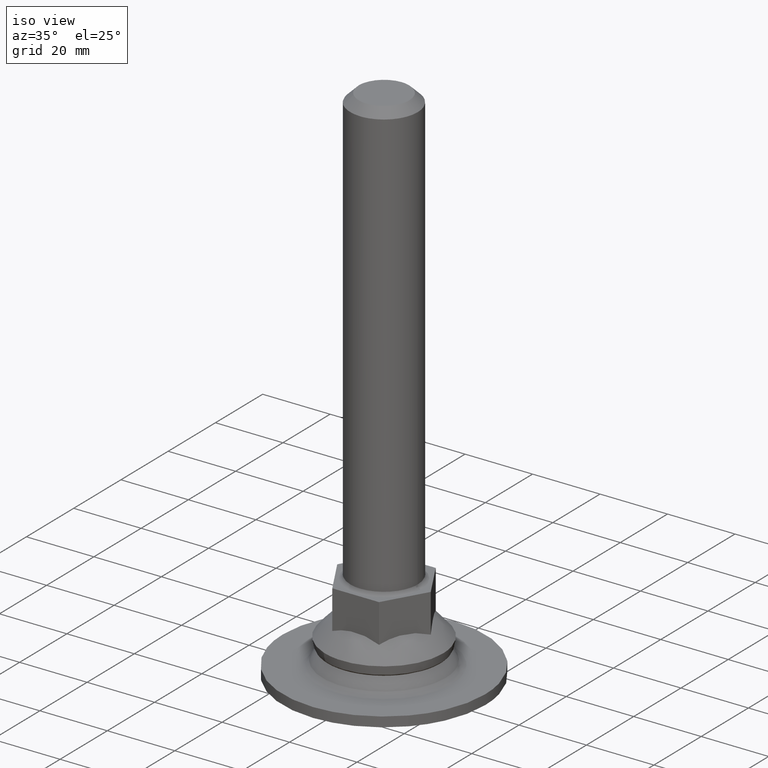
[diagram: clean part render]
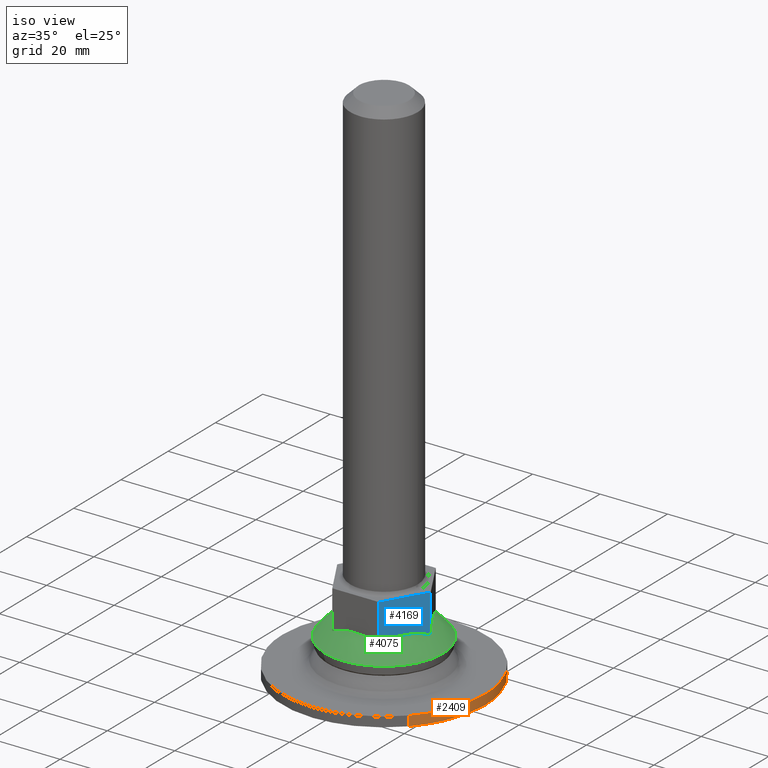
[diagram: same view with three faces highlighted in distinct colors, each labeled with its STEP entity id]
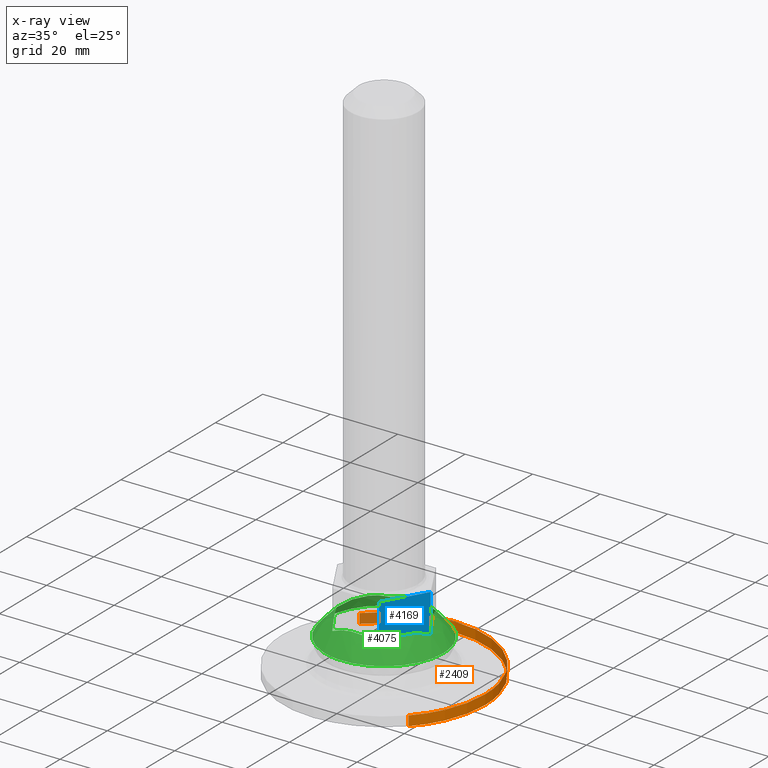
[diagram: x-ray of the same camera — body ghosted, the three highlighted faces saturated]
A machine part, iso view with three faces highlighted in distinct colors.
The next image is the same camera in x-ray (body ghosted, the three faces saturated) — at least one of them is partly hidden behind the body in this view.
Their STEP definitions:

[orange] entity #2409 — the highlighted face is a freeform B-spline surface patch.
#2119=CARTESIAN_POINT('',(21.761230764996089,-20.650637017019928,2.899999999989398));
#2120=VERTEX_POINT('',#2119);
#2132=CARTESIAN_POINT('',(30.0,0.0,2.900000000000000));
#2133=VERTEX_POINT('',#2132);
#2134=CARTESIAN_POINT('',(30.0,0.0,2.900000000000000));
#2135=CARTESIAN_POINT('',(30.000355393222371,-2.076019586757718,2.899999999998936));
#2136=CARTESIAN_POINT('',(29.647568647536708,-5.456774127191904,2.899999999997204));
#2137=CARTESIAN_POINT('',(28.494235643432059,-9.578144171243961,2.899999999995075));
#2138=CARTESIAN_POINT('',(27.208681720518189,-12.772798015401550,2.899999999993449));
#2139=CARTESIAN_POINT('',(25.225470773670221,-16.497149818806999,2.899999999991527));
#2140=CARTESIAN_POINT('',(23.190491004012021,-19.144962882207700,2.899999999990175));
#2141=CARTESIAN_POINT('',(21.761230764996089,-20.650637017019928,2.899999999989398));
#2142=B_SPLINE_CURVE_WITH_KNOTS('',3,(#2134,#2135,#2136,#2137,#2138,#2139,#2140,#2141),.UNSPECIFIED.,.F.,.U.,(4,1,1,1,1,4),(0.000000022252120,6.227972320940832,10.142719562158350,12.811824414762359,16.548607727859821,22.776580026541399),.UNSPECIFIED.);
#2143=EDGE_CURVE('',#2133,#2120,#2142,.T.);
#2145=CARTESIAN_POINT('',(0.000001761338240,29.999999999999940,2.900000000000000));
#2146=VERTEX_POINT('',#2145);
#2147=CARTESIAN_POINT('',(0.000001761338240,29.999999999999940,2.900000000000000));
#2148=CARTESIAN_POINT('',(2.086238682202093,30.000303496341811,2.900000000000003));
#2149=CARTESIAN_POINT('',(5.338133266690688,29.659378009117429,2.899999999999998));
#2150=CARTESIAN_POINT('',(9.488215711440585,28.524436846726669,2.899999999999998));
#2151=CARTESIAN_POINT('',(12.458438911169530,27.347174617853170,2.899999999999993));
#2152=CARTESIAN_POINT('',(15.730336126479569,25.649714122565229,2.900000000000001));
#2153=CARTESIAN_POINT('',(18.958961805379520,23.390681844019440,2.900000000000018));
#2154=CARTESIAN_POINT('',(21.906538539890882,20.601374934706708,2.899999999999998));
#2155=CARTESIAN_POINT('',(24.341667280591540,17.671048854587049,2.899999999999987));
#2156=CARTESIAN_POINT('',(26.226562296412091,14.714615564460701,2.900000000000059));
#2157=CARTESIAN_POINT('',(27.902756596010889,11.226108130881549,2.899999999999996));
#2158=CARTESIAN_POINT('',(29.101911704044880,7.669762040312493,2.900000000000011));
#2159=CARTESIAN_POINT('',(29.845434248517201,3.742892421825609,2.899999999999988));
#2160=CARTESIAN_POINT('',(30.000035239689531,1.227172351174385,2.899999999999964));
#2161=CARTESIAN_POINT('',(30.0,0.0,2.900000000000000));
#2162=B_SPLINE_CURVE_WITH_KNOTS('',3,(#2147,#2148,#2149,#2150,#2151,#2152,#2153,#2154,#2155,#2156,#2157,#2158,#2159,#2160,#2161),.UNSPECIFIED.,.F.,.U.,(4,1,1,1,1,1,1,1,1,1,1,1,4),(0.000000088041674,6.258635742040475,9.756122318117889,12.885464768907941,15.830714375185870,20.800826725328470,24.666443345403270,27.979845836676390,32.213644572505409,35.158893277056379,39.576772422274153,43.442441905843360,47.123962734833711),.UNSPECIFIED.);
#2163=EDGE_CURVE('',#2146,#2133,#2162,.T.);
#2165=CARTESIAN_POINT('',(-21.761230764996188,20.650637017020010,2.899999999989399));
#2166=VERTEX_POINT('',#2165);
#2167=CARTESIAN_POINT('',(-21.761230764996188,20.650637017020010,2.899999999989399));
#2168=CARTESIAN_POINT('',(-20.452053293994322,22.030584865894379,2.899999999990035));
#2169=CARTESIAN_POINT('',(-18.050195995307998,24.121643395084739,2.899999999991213));
#2170=CARTESIAN_POINT('',(-14.115744232367449,26.577198886518669,2.899999999993116));
#2171=CARTESIAN_POINT('',(-10.113395971732899,28.372512276100689,2.899999999995074));
#2172=CARTESIAN_POINT('',(-5.325922357029522,29.678382266814630,2.899999999997396));
#2173=CARTESIAN_POINT('',(-1.838742314626375,30.000184142766880,2.899999999999120));
#2174=CARTESIAN_POINT('',(0.000001761338240,29.999999999999940,2.900000000000000));
#2175=B_SPLINE_CURVE_WITH_KNOTS('',3,(#2167,#2168,#2169,#2170,#2171,#2172,#2173,#2174),.UNSPECIFIED.,.F.,.U.,(4,1,1,1,1,4),(0.000000025372653,5.706417497627022,9.510716173797627,13.885611749658580,18.831184074469579,24.347385363386611),.UNSPECIFIED.);
#2176=EDGE_CURVE('',#2166,#2146,#2175,.T.);
#2329=CARTESIAN_POINT('',(-21.761231130368621,20.650637270812609,2.972500000000000));
#2330=CARTESIAN_POINT('',(-1.110593859556008,42.411868401181231,2.972500000000001));
#2331=CARTESIAN_POINT('',(20.650637270812609,21.761231130368621,2.972500000000000));
#2332=CARTESIAN_POINT('',(42.411868401181231,1.110593859556008,2.972500000000001));
#2333=CARTESIAN_POINT('',(21.761231130368621,-20.650637270812609,2.972500000000000));
#2334=CARTESIAN_POINT('',(-21.761231130368621,20.650637270812609,-0.074312500000000));
#2335=CARTESIAN_POINT('',(-1.110593859556008,42.411868401181231,-0.074312500000000));
#2336=CARTESIAN_POINT('',(20.650637270812609,21.761231130368621,-0.074312500000000));
#2337=CARTESIAN_POINT('',(42.411868401181231,1.110593859556008,-0.074312500000000));
#2338=CARTESIAN_POINT('',(21.761231130368621,-20.650637270812609,-0.074312500000000));
#2346=(BOUNDED_SURFACE()B_SPLINE_SURFACE(2,1,((#2329,#2334),(#2330,#2335),(#2331,#2336),(#2332,#2337),(#2333,#2338)),.UNSPECIFIED.,.F.,.F.,.U.)B_SPLINE_SURFACE_WITH_KNOTS((3,2,3),(2,2),(0.0,49.705627484771391,99.411254969542782),(0.0,3.046812500000001),.UNSPECIFIED.)GEOMETRIC_REPRESENTATION_ITEM()RATIONAL_B_SPLINE_SURFACE(((1.0,1.0),(0.707106781186548,0.707106781186548),(1.0,1.0),(0.707106781186548,0.707106781186548),(1.0,1.0)))REPRESENTATION_ITEM('')SURFACE());
#2347=ORIENTED_EDGE('',*,*,#2176,.T.);
#2348=ORIENTED_EDGE('',*,*,#2163,.T.);
#2349=ORIENTED_EDGE('',*,*,#2143,.T.);
#2350=CARTESIAN_POINT('',(21.761230765545118,-20.650637016441380,-1.387779E-016));
#2351=VERTEX_POINT('',#2350);
#2352=CARTESIAN_POINT('',(21.761230764996089,-20.650637017019928,2.899999999989398));
#2353=CARTESIAN_POINT('',(21.761230765545118,-20.650637016441380,-1.387779E-016));
#2354=QUASI_UNIFORM_CURVE('',1,(#2352,#2353),.UNSPECIFIED.,.F.,.U.);
#2355=EDGE_CURVE('',#2120,#2351,#2354,.T.);
#2356=ORIENTED_EDGE('',*,*,#2355,.T.);
#2357=CARTESIAN_POINT('',(30.0,0.0,0.0));
#2358=VERTEX_POINT('',#2357);
#2359=CARTESIAN_POINT('',(30.0,0.0,0.0));
#2360=CARTESIAN_POINT('',(30.000183377867700,-1.838739617620140,-1.235683E-017));
#2361=CARTESIAN_POINT('',(29.660898921389759,-5.516168831245085,-3.707015E-017));
#2362=CARTESIAN_POINT('',(28.363253247305799,-10.101253346123579,-6.788316E-017));
#2363=CARTESIAN_POINT('',(26.687648335277430,-13.841605054287360,-9.301934E-017));
#2364=CARTESIAN_POINT('',(24.692253565640790,-17.217599870902362,-1.157069E-016));
#2365=CARTESIAN_POINT('',(22.904549774524710,-19.446032984824779,-1.306826E-016));
#2366=CARTESIAN_POINT('',(21.761230765545118,-20.650637016441380,-1.387779E-016));
#2367=B_SPLINE_CURVE_WITH_KNOTS('',3,(#2359,#2360,#2361,#2362,#2363,#2364,#2365,#2366),.UNSPECIFIED.,.F.,.U.,(4,1,1,1,1,4),(0.000000022256284,5.516202165976527,11.032428558268119,14.235361105252730,17.794207202618342,22.776580025743879),.UNSPECIFIED.);
#2368=EDGE_CURVE('',#2358,#2351,#2367,.T.);
#2369=ORIENTED_EDGE('',*,*,#2368,.F.);
#2370=CARTESIAN_POINT('',(0.000001761338240,29.999999999999940,0.0));
#2371=VERTEX_POINT('',#2370);
#2372=CARTESIAN_POINT('',(0.000001761338240,29.999999999999940,0.0));
#2373=CARTESIAN_POINT('',(2.086229581603931,30.000278536362849,0.0));
#2374=CARTESIAN_POINT('',(6.135829194591464,29.575907864060088,0.0));
#2375=CARTESIAN_POINT('',(11.190604742922870,27.974587807741141,0.0));
#2376=CARTESIAN_POINT('',(15.528528393269760,25.790869995812269,0.0));
#2377=CARTESIAN_POINT('',(18.958963661492280,23.390681587139579,0.0));
#2378=CARTESIAN_POINT('',(21.906538204748330,20.601374966317231,0.0));
#2379=CARTESIAN_POINT('',(24.341667302574329,17.671048877060208,0.0));
#2380=CARTESIAN_POINT('',(26.226562289995680,14.714615557634691,0.0));
#2381=CARTESIAN_POINT('',(27.902756598369070,11.226108133390120,0.0));
#2382=CARTESIAN_POINT('',(29.101911703390510,7.669762039616171,0.0));
#2383=CARTESIAN_POINT('',(29.845434248600430,3.742892421914155,0.0));
#2384=CARTESIAN_POINT('',(30.000035239689542,1.227172351174387,0.0));
#2385=CARTESIAN_POINT('',(30.0,0.0,0.0));
#2386=B_SPLINE_CURVE_WITH_KNOTS('',3,(#2372,#2373,#2374,#2375,#2376,#2377,#2378,#2379,#2380,#2381,#2382,#2383,#2384,#2385),.UNSPECIFIED.,.F.,.U.,(4,1,1,1,1,1,1,1,1,1,1,4),(0.000000088041674,6.258635742040475,12.149147541237570,15.830714375185870,20.800826725328470,24.666443345403270,27.979845836676390,32.213644572505409,35.158893277056379,39.576772422274153,43.442441905843360,47.123962734833711),.UNSPECIFIED.);
#2387=EDGE_CURVE('',#2371,#2358,#2386,.T.);
#2388=ORIENTED_EDGE('',*,*,#2387,.F.);
#2389=CARTESIAN_POINT('',(-21.761230765545200,20.650637016441468,-1.387779E-016));
#2390=VERTEX_POINT('',#2389);
#2391=CARTESIAN_POINT('',(-21.761230765545200,20.650637016441468,-1.387779E-016));
#2392=CARTESIAN_POINT('',(-20.146695814922090,22.352717505585719,-1.284815E-016));
#2393=CARTESIAN_POINT('',(-17.300580464178140,24.721266517780471,-1.103310E-016));
#2394=CARTESIAN_POINT('',(-13.252856310191770,26.987236197412368,-8.451743E-017));
#2395=CARTESIAN_POINT('',(-9.446696908266837,28.579970737940929,-6.024442E-017));
#2396=CARTESIAN_POINT('',(-5.135775263343249,29.711985133281040,-3.275238E-017));
#2397=CARTESIAN_POINT('',(-1.648511353710938,30.000079244026100,-1.051306E-017));
#2398=CARTESIAN_POINT('',(0.000001761338240,29.999999999999940,0.0));
#2399=B_SPLINE_CURVE_WITH_KNOTS('',3,(#2391,#2392,#2393,#2394,#2395,#2396,#2397,#2398),.UNSPECIFIED.,.F.,.U.,(4,1,1,1,1,4),(0.000000025370674,7.037918678431822,11.032414331042760,13.885611750113910,19.401829110458159,24.347385364184198),.UNSPECIFIED.);
#2400=EDGE_CURVE('',#2390,#2371,#2399,.T.);
#2401=ORIENTED_EDGE('',*,*,#2400,.F.);
#2402=CARTESIAN_POINT('',(-21.761230764996188,20.650637017020010,2.899999999989399));
#2403=CARTESIAN_POINT('',(-21.761230765545200,20.650637016441468,-1.387779E-016));
#2404=QUASI_UNIFORM_CURVE('',1,(#2402,#2403),.UNSPECIFIED.,.F.,.U.);
#2405=EDGE_CURVE('',#2166,#2390,#2404,.T.);
#2406=ORIENTED_EDGE('',*,*,#2405,.F.);
#2407=EDGE_LOOP('',(#2347,#2348,#2349,#2356,#2369,#2388,#2401,#2406));
#2408=FACE_OUTER_BOUND('',#2407,.T.);
#2409=ADVANCED_FACE('',(#2408),#2346,.T.);

[blue] entity #4169 — the highlighted face is a freeform B-spline surface patch.
#4013=CARTESIAN_POINT('',(13.856406460551060,-8.673617E-016,14.570158679988101));
#4014=VERTEX_POINT('',#4013);
#4026=CARTESIAN_POINT('',(6.928203230275470,-12.0,14.570158679988181));
#4027=VERTEX_POINT('',#4026);
#4028=CARTESIAN_POINT('',(13.856406460551060,-8.673617E-016,14.570158679988101));
#4029=CARTESIAN_POINT('',(13.141034553828201,-1.239060488751392,15.187634220445579));
#4030=CARTESIAN_POINT('',(12.023676380910620,-3.174381614496955,15.813457879783851));
#4031=CARTESIAN_POINT('',(10.300026580062340,-6.159830644022265,16.077137179080481));
#4032=CARTESIAN_POINT('',(8.702854577197627,-8.926213701409857,15.802166407660289));
#4033=CARTESIAN_POINT('',(7.524375763918598,-10.967398881653240,15.084465036111521));
#4034=CARTESIAN_POINT('',(6.928203230275470,-12.0,14.570158679988181));
#4035=B_SPLINE_CURVE_WITH_KNOTS('',3,(#4028,#4029,#4030,#4031,#4032,#4033,#4034),.UNSPECIFIED.,.F.,.U.,(4,1,1,1,4),(0.000000028514807,4.674672836013926,6.900697735109973,10.351039210532790,14.246592451144121),.UNSPECIFIED.);
#4036=EDGE_CURVE('',#4014,#4027,#4035,.T.);
#4104=CARTESIAN_POINT('',(6.928203230275470,-12.0,26.0));
#4105=VERTEX_POINT('',#4104);
#4111=CARTESIAN_POINT('',(13.856406460551060,0.0,26.0));
#4112=VERTEX_POINT('',#4111);
#4113=CARTESIAN_POINT('',(6.928203230275470,-12.0,26.0));
#4114=CARTESIAN_POINT('',(13.856406460551060,0.0,26.0));
#4115=QUASI_UNIFORM_CURVE('',1,(#4113,#4114),.UNSPECIFIED.,.F.,.U.);
#4116=EDGE_CURVE('',#4105,#4112,#4115,.T.);
#4146=CARTESIAN_POINT('',(13.856406460551060,0.0,26.0));
#4147=CARTESIAN_POINT('',(13.856406460551060,-8.673617E-016,14.570158679988101));
#4148=QUASI_UNIFORM_CURVE('',1,(#4146,#4147),.UNSPECIFIED.,.F.,.U.);
#4149=EDGE_CURVE('',#4112,#4014,#4148,.T.);
#4154=CARTESIAN_POINT('',(14.202470198475149,0.599399976741658,13.999238128206761));
#4155=CARTESIAN_POINT('',(6.582139306522511,-12.599400298606760,13.999238128206761));
#4156=CARTESIAN_POINT('',(14.202470198475149,0.599399976741658,26.570920858353581));
#4157=CARTESIAN_POINT('',(6.582139306522511,-12.599400298606760,26.570920858353581));
#4158=B_SPLINE_SURFACE_WITH_KNOTS('',1,1,((#4154,#4156),(#4155,#4157)),.UNSPECIFIED.,.F.,.F.,.U.,(2,2),(2,2),(0.0,15.240661783905090),(0.0,12.571682730146820),.UNSPECIFIED.);
#4159=ORIENTED_EDGE('',*,*,#4036,.F.);
#4160=ORIENTED_EDGE('',*,*,#4149,.F.);
#4161=ORIENTED_EDGE('',*,*,#4116,.F.);
#4162=CARTESIAN_POINT('',(6.928203230275470,-12.0,26.0));
#4163=CARTESIAN_POINT('',(6.928203230275470,-12.0,14.570158679988181));
#4164=QUASI_UNIFORM_CURVE('',1,(#4162,#4163),.UNSPECIFIED.,.F.,.U.);
#4165=EDGE_CURVE('',#4105,#4027,#4164,.T.);
#4166=ORIENTED_EDGE('',*,*,#4165,.T.);
#4167=EDGE_LOOP('',(#4159,#4160,#4161,#4166));
#4168=FACE_OUTER_BOUND('',#4167,.T.);
#4169=ADVANCED_FACE('',(#4168),#4158,.F.);

[green] entity #4075 — the highlighted face is a freeform B-spline surface patch.
#3670=CARTESIAN_POINT('',(6.442179674585724,16.271088502013519,10.499999999990189));
#3671=VERTEX_POINT('',#3670);
#3679=CARTESIAN_POINT('',(17.500000000000000,0.0,10.500000000000000));
#3680=VERTEX_POINT('',#3679);
#3681=CARTESIAN_POINT('',(6.442179674585724,16.271088502013519,10.499999999990189));
#3682=CARTESIAN_POINT('',(7.453908197713509,15.870616209934409,10.499999999990621));
#3683=CARTESIAN_POINT('',(9.402295731364310,14.880143170148971,10.499999999991610));
#3684=CARTESIAN_POINT('',(11.782378638544200,13.045172664836080,10.499999999993010));
#3685=CARTESIAN_POINT('',(13.903208086971810,10.772229792109140,10.499999999994550));
#3686=CARTESIAN_POINT('',(15.457672082496000,8.390702196822153,10.499999999995950));
#3687=CARTESIAN_POINT('',(16.469123751887949,6.035357947709137,10.499999999997240));
#3688=CARTESIAN_POINT('',(17.261199583277381,3.372986185648013,10.499999999998529));
#3689=CARTESIAN_POINT('',(17.500372527639481,1.414579519061805,10.499999999999520));
#3690=CARTESIAN_POINT('',(17.500000000000000,0.0,10.500000000000000));
#3691=B_SPLINE_CURVE_WITH_KNOTS('',3,(#3681,#3682,#3683,#3684,#3685,#3686,#3687,#3688,#3689,#3690),.UNSPECIFIED.,.F.,.U.,(4,1,1,1,1,1,1,4),(0.000000062979431,3.264314840136564,6.528658448038792,8.976888634909805,12.567640619368021,15.015879468751271,16.648049369415961,20.891666860553300),.UNSPECIFIED.);
#3692=EDGE_CURVE('',#3671,#3680,#3691,.T.);
#3694=CARTESIAN_POINT('',(-6.442179674585729,-16.271088502013519,10.499999999990189));
#3695=VERTEX_POINT('',#3694);
#3696=CARTESIAN_POINT('',(17.500000000000000,0.0,10.500000000000000));
#3697=CARTESIAN_POINT('',(17.500006211144171,-0.710124742741039,10.499999999999870));
#3698=CARTESIAN_POINT('',(17.394568277416280,-2.441073384372994,10.499999999999501));
#3699=CARTESIAN_POINT('',(16.848613413544960,-5.012392549660858,10.499999999998851));
#3700=CARTESIAN_POINT('',(15.940593902250860,-7.333797674413325,10.499999999998231));
#3701=CARTESIAN_POINT('',(14.793594773524291,-9.441569019860035,10.499999999997460));
#3702=CARTESIAN_POINT('',(13.250885818245290,-11.567879454937380,10.499999999996589));
#3703=CARTESIAN_POINT('',(11.358936673292749,-13.395390039172559,10.499999999995580));
#3704=CARTESIAN_POINT('',(9.194385898848569,-14.952184427519200,10.499999999995140));
#3705=CARTESIAN_POINT('',(6.797775305136968,-16.231853776583151,10.499999999993360));
#3706=CARTESIAN_POINT('',(3.992440345801060,-17.123544853423098,10.499999999993641));
#3707=CARTESIAN_POINT('',(0.864867560558503,-17.565572910576019,10.499999999991660));
#3708=CARTESIAN_POINT('',(-2.569056542280547,-17.459748864937740,10.499999999991211));
#3709=CARTESIAN_POINT('',(-5.121768541767907,-16.794283924800791,10.499999999990569));
#3710=CARTESIAN_POINT('',(-6.442179674585729,-16.271088502013519,10.499999999990189));
#3711=B_SPLINE_CURVE_WITH_KNOTS('',3,(#3696,#3697,#3698,#3699,#3700,#3701,#3702,#3703,#3704,#3705,#3706,#3707,#3708,#3709,#3710),.UNSPECIFIED.,.F.,.U.,(4,1,1,1,1,1,1,1,1,1,1,1,4),(0.000000168006792,2.130385487318371,5.192829445265314,7.855836131159776,9.586800588234187,12.382971418553350,15.711746756407191,17.442615929352371,20.371914432671598,23.833821584871259,26.230523017547949,29.825601393637569,34.086362511395507),.UNSPECIFIED.);
#3712=EDGE_CURVE('',#3680,#3695,#3711,.T.);
#3758=CARTESIAN_POINT('',(-17.500000000000121,0.0,10.500000000000000));
#3759=VERTEX_POINT('',#3758);
#3760=CARTESIAN_POINT('',(-6.442179674585729,-16.271088502013519,10.499999999990189));
#3761=CARTESIAN_POINT('',(-7.909403056505498,-15.690785012143140,10.499999999990870));
#3762=CARTESIAN_POINT('',(-10.253886765626660,-14.371399130210991,10.499999999991999));
#3763=CARTESIAN_POINT('',(-12.995933290166050,-11.863900337865269,10.499999999993859));
#3764=CARTESIAN_POINT('',(-14.809583255925981,-9.469138042600354,10.499999999995341));
#3765=CARTESIAN_POINT('',(-16.310329054576361,-6.621495620242734,10.499999999996980));
#3766=CARTESIAN_POINT('',(-17.276221942762579,-3.481962213637714,10.499999999998490));
#3767=CARTESIAN_POINT('',(-17.500058626029968,-1.088089764498307,10.499999999999609));
#3768=CARTESIAN_POINT('',(-17.500000000000121,0.0,10.500000000000000));
#3769=B_SPLINE_CURVE_WITH_KNOTS('',3,(#3760,#3761,#3762,#3763,#3764,#3765,#3766,#3767,#3768),.UNSPECIFIED.,.F.,.U.,(4,1,1,1,1,1,4),(0.000000062977339,4.733268189295398,7.997615517057453,11.098683074711349,13.710139282890230,17.627361045610691,20.891666860553350),.UNSPECIFIED.);
#3770=EDGE_CURVE('',#3695,#3759,#3769,.T.);
#3772=CARTESIAN_POINT('',(-17.500000000000121,0.0,10.500000000000000));
#3773=CARTESIAN_POINT('',(-17.500144850682450,1.153966550089619,10.499999999999741));
#3774=CARTESIAN_POINT('',(-17.314920477574582,3.017994059651594,10.499999999999471));
#3775=CARTESIAN_POINT('',(-16.564199166124059,5.855089227759826,10.499999999998581));
#3776=CARTESIAN_POINT('',(-15.460601955514550,8.388402092233131,10.499999999997890));
#3777=CARTESIAN_POINT('',(-13.958326001599911,10.652154075288170,10.499999999996771));
#3778=CARTESIAN_POINT('',(-12.274874686272330,12.546118164398580,10.499999999996261));
#3779=CARTESIAN_POINT('',(-10.318811712563360,14.230984856603740,10.499999999995341));
#3780=CARTESIAN_POINT('',(-8.112383970420106,15.576022861981160,10.499999999994429));
#3781=CARTESIAN_POINT('',(-5.822178772591757,16.552020377027109,10.499999999993580));
#3782=CARTESIAN_POINT('',(-3.511658972339403,17.209821897142231,10.499999999992800));
#3783=CARTESIAN_POINT('',(-0.641568290883142,17.582201293365120,10.499999999991850));
#3784=CARTESIAN_POINT('',(2.788426120537065,17.411107775737221,10.499999999991079));
#3785=CARTESIAN_POINT('',(5.204268853842240,16.761515460165850,10.499999999990600));
#3786=CARTESIAN_POINT('',(6.442179674585724,16.271088502013519,10.499999999990189));
#3787=B_SPLINE_CURVE_WITH_KNOTS('',3,(#3772,#3773,#3774,#3775,#3776,#3777,#3778,#3779,#3780,#3781,#3782,#3783,#3784,#3785,#3786),.UNSPECIFIED.,.F.,.U.,(4,1,1,1,1,1,1,1,1,1,1,1,4),(0.000000167960621,3.461874291258667,5.592292310645814,8.787892617819455,11.717218310779151,13.714451520045611,16.377485913983229,19.439822022286648,21.437114204128431,23.833821584858072,26.629974421282519,30.091876361677709,34.086362511395542),.UNSPECIFIED.);
#3788=EDGE_CURVE('',#3759,#3671,#3787,.T.);
#3968=CARTESIAN_POINT('',(-14.711999319281363,-14.710809803207098,2.671228951201927));
#3969=CARTESIAN_POINT('',(-9.205027131867572,-18.408565747121305,9.053421584204482));
#3970=CARTESIAN_POINT('',(9.205027131871459,-18.408565747121305,9.053421584201091));
#3971=CARTESIAN_POINT('',(14.711999319282892,-14.710809803207098,2.671228951196516));
#3972=CARTESIAN_POINT('',(-18.409306007857481,-9.203908775871888,9.052130226120786));
#3973=CARTESIAN_POINT('',(-12.295050359183881,-12.294056261808210,19.719095173921449));
#3974=CARTESIAN_POINT('',(12.295050359191690,-12.294056261808210,19.719095173916930));
#3975=CARTESIAN_POINT('',(18.409306007861368,-9.203908775871888,9.052130226114018));
#3976=CARTESIAN_POINT('',(-18.409306007857481,9.203922122853653,9.052130226125998));
#3977=CARTESIAN_POINT('',(-12.295050359183881,12.294074089940970,19.719095173928419));
#3978=CARTESIAN_POINT('',(12.295050359191690,12.294074089940970,19.719095173923890));
#3979=CARTESIAN_POINT('',(18.409306007861368,9.203922122853653,9.052130226119230));
#3980=CARTESIAN_POINT('',(-14.711990749677042,14.710822567064909,2.671214161579952));
#3981=CARTESIAN_POINT('',(-9.205020422254822,18.408579024015843,9.053398424991114));
#3982=CARTESIAN_POINT('',(9.205020422258709,18.408579024015843,9.053398424987721));
#3983=CARTESIAN_POINT('',(14.711990749678579,14.710822567064902,2.671214161574540));
#3991=(BOUNDED_SURFACE()B_SPLINE_SURFACE(2,2,((#3968,#3972,#3976,#3980),(#3969,#3973,#3977,#3981),(#3970,#3974,#3978,#3982),(#3971,#3975,#3979,#3983)),.UNSPECIFIED.,.F.,.F.,.U.)B_SPLINE_SURFACE_WITH_KNOTS((3,1,3),(3,1,3),(0.0,21.055730035494449,42.111460070988898),(0.0,21.054027606828559,42.108085745016723),.UNSPECIFIED.)GEOMETRIC_REPRESENTATION_ITEM()RATIONAL_B_SPLINE_SURFACE(((1.671431610668090,1.335742950216450,1.335742950216450,1.671432584262200),(1.335688660451639,1.0,1.0,1.335689634045749),(1.335688660451639,1.0,1.0,1.335689634045749),(1.671431610668090,1.335742950216450,1.335742950216450,1.671432584262200)))REPRESENTATION_ITEM('')SURFACE());
#3992=ORIENTED_EDGE('',*,*,#3770,.F.);
#3993=ORIENTED_EDGE('',*,*,#3712,.F.);
#3994=ORIENTED_EDGE('',*,*,#3692,.F.);
#3995=ORIENTED_EDGE('',*,*,#3788,.F.);
#3996=EDGE_LOOP('',(#3992,#3993,#3994,#3995));
#3997=FACE_OUTER_BOUND('',#3996,.T.);
#3998=CARTESIAN_POINT('',(-6.928203230275360,12.0,14.570158679988200));
#3999=VERTEX_POINT('',#3998);
#4000=CARTESIAN_POINT('',(6.928203230275470,12.0,14.570158679988140));
#4001=VERTEX_POINT('',#4000);
#4002=CARTESIAN_POINT('',(-6.928203230275360,12.0,14.570158679988200));
#4003=CARTESIAN_POINT('',(-6.178696562258674,12.000000000000041,14.893321924338849));
#4004=CARTESIAN_POINT('',(-4.564160053336132,11.999999999999950,15.459120486944871));
#4005=CARTESIAN_POINT('',(-2.079900639575402,12.000000000000041,15.938964254885279));
#4006=CARTESIAN_POINT('',(0.781018238866467,12.0,16.066536193679720));
#4007=CARTESIAN_POINT('',(3.814555504374301,11.999999999999940,15.688329962001269));
#4008=CARTESIAN_POINT('',(5.940232137980542,12.000000000000041,14.996194962824671));
#4009=CARTESIAN_POINT('',(6.928203230275470,12.0,14.570158679988140));
#4010=B_SPLINE_CURVE_WITH_KNOTS('',3,(#4002,#4003,#4004,#4005,#4006,#4007,#4008,#4009),.UNSPECIFIED.,.F.,.U.,(4,1,1,1,1,4),(0.000000028517164,2.448623432332353,5.119881530781322,7.568494285193552,11.018849480441220,14.246592451143870),.UNSPECIFIED.);
#4011=EDGE_CURVE('',#3999,#4001,#4010,.T.);
#4012=ORIENTED_EDGE('',*,*,#4011,.T.);
#4013=CARTESIAN_POINT('',(13.856406460551060,-8.673617E-016,14.570158679988101));
#4014=VERTEX_POINT('',#4013);
#4015=CARTESIAN_POINT('',(6.928203230275470,12.0,14.570158679988140));
#4016=CARTESIAN_POINT('',(7.524377461426039,10.967395941483961,15.084469845042280));
#4017=CARTESIAN_POINT('',(8.488588868726682,9.297332794801656,15.671598723995890));
#4018=CARTESIAN_POINT('',(9.927026189751881,6.805886271282907,16.030182158436212));
#4019=CARTESIAN_POINT('',(11.117603400616201,4.743746051732094,15.999911357144221));
#4020=CARTESIAN_POINT('',(12.476716101733521,2.389693800184831,15.572881777790551));
#4021=CARTESIAN_POINT('',(13.362421208700169,0.855607554395510,14.996209067962459));
#4022=CARTESIAN_POINT('',(13.856406460551060,-8.673617E-016,14.570158679988101));
#4023=B_SPLINE_CURVE_WITH_KNOTS('',3,(#4015,#4016,#4017,#4018,#4019,#4020,#4021,#4022),.UNSPECIFIED.,.F.,.U.,(4,1,1,1,1,4),(0.000000028514526,3.895553269126078,6.010294554167890,8.681503538857559,11.018849480440680,14.246592451144140),.UNSPECIFIED.);
#4024=EDGE_CURVE('',#4001,#4014,#4023,.T.);
#4025=ORIENTED_EDGE('',*,*,#4024,.T.);
#4026=CARTESIAN_POINT('',(6.928203230275470,-12.0,14.570158679988181));
#4027=VERTEX_POINT('',#4026);
#4028=CARTESIAN_POINT('',(13.856406460551060,-8.673617E-016,14.570158679988101));
#4029=CARTESIAN_POINT('',(13.141034553828201,-1.239060488751392,15.187634220445579));
#4030=CARTESIAN_POINT('',(12.023676380910620,-3.174381614496955,15.813457879783851));
#4031=CARTESIAN_POINT('',(10.300026580062340,-6.159830644022265,16.077137179080481));
#4032=CARTESIAN_POINT('',(8.702854577197627,-8.926213701409857,15.802166407660289));
#4033=CARTESIAN_POINT('',(7.524375763918598,-10.967398881653240,15.084465036111521));
#4034=CARTESIAN_POINT('',(6.928203230275470,-12.0,14.570158679988181));
#4035=B_SPLINE_CURVE_WITH_KNOTS('',3,(#4028,#4029,#4030,#4031,#4032,#4033,#4034),.UNSPECIFIED.,.F.,.U.,(4,1,1,1,4),(0.000000028514807,4.674672836013926,6.900697735109973,10.351039210532790,14.246592451144121),.UNSPECIFIED.);
#4036=EDGE_CURVE('',#4014,#4027,#4035,.T.);
#4037=ORIENTED_EDGE('',*,*,#4036,.T.);
#4038=CARTESIAN_POINT('',(-6.928203230275470,-12.0,14.570158679988181));
#4039=VERTEX_POINT('',#4038);
#4040=CARTESIAN_POINT('',(6.928203230275470,-12.0,14.570158679988181));
#4041=CARTESIAN_POINT('',(6.008362459772578,-11.999999999999989,14.966797190317880));
#4042=CARTESIAN_POINT('',(4.029673508363376,-12.000000000000041,15.625045267456370));
#4043=CARTESIAN_POINT('',(1.153240608348032,-11.999999999999920,16.039527675712328));
#4044=CARTESIAN_POINT('',(-1.524063739496989,-12.000000000000069,15.988343321810479));
#4045=CARTESIAN_POINT('',(-4.168820436342259,-11.999999999999940,15.572881645291590));
#4046=CARTESIAN_POINT('',(-5.940235090057154,-12.000000000000050,14.996214528817720));
#4047=CARTESIAN_POINT('',(-6.928203230275470,-12.0,14.570158679988181));
#4048=B_SPLINE_CURVE_WITH_KNOTS('',3,(#4040,#4041,#4042,#4043,#4044,#4045,#4046,#4047),.UNSPECIFIED.,.F.,.U.,(4,1,1,1,1,4),(0.000000028515659,3.005139063504737,6.232896496528067,8.681503538858184,11.018849480441061,14.246592451144000),.UNSPECIFIED.);
#4049=EDGE_CURVE('',#4027,#4039,#4048,.T.);
#4050=ORIENTED_EDGE('',*,*,#4049,.T.);
#4051=CARTESIAN_POINT('',(-13.856406460550939,0.0,14.570158679988200));
#4052=VERTEX_POINT('',#4051);
#4053=CARTESIAN_POINT('',(-6.928203230275470,-12.0,14.570158679988181));
#4054=CARTESIAN_POINT('',(-7.643574720282879,-10.760940233020801,15.187606993266630));
#4055=CARTESIAN_POINT('',(-8.778959654698111,-8.794395840465603,15.823607268622240));
#4056=CARTESIAN_POINT('',(-10.577552725744621,-5.679141259271629,16.087229907282801));
#4057=CARTESIAN_POINT('',(-12.173888530122960,-2.914206540146455,15.761199887946310));
#4058=CARTESIAN_POINT('',(-13.328356397104590,-0.914609538829450,15.025589082992729));
#4059=CARTESIAN_POINT('',(-13.856406460550939,0.0,14.570158679988200));
#4060=B_SPLINE_CURVE_WITH_KNOTS('',3,(#4053,#4054,#4055,#4056,#4057,#4058,#4059),.UNSPECIFIED.,.F.,.U.,(4,1,1,1,4),(0.000000028514489,4.674672836014151,7.012027229211225,10.796245948576750,14.246592451144050),.UNSPECIFIED.);
#4061=EDGE_CURVE('',#4039,#4052,#4060,.T.);
#4062=ORIENTED_EDGE('',*,*,#4061,.T.);
#4063=CARTESIAN_POINT('',(-13.856406460550939,0.0,14.570158679988200));
#4064=CARTESIAN_POINT('',(-13.192120216711981,1.150577525098163,15.143386691438151));
#4065=CARTESIAN_POINT('',(-12.007374107653380,3.202617980057143,15.831760752182371));
#4066=CARTESIAN_POINT('',(-10.391878766145449,6.000737990939766,16.068432024233751));
#4067=CARTESIAN_POINT('',(-8.742419754664631,8.857684803826805,15.805738641099859));
#4068=CARTESIAN_POINT('',(-7.626561187608335,10.790408536029290,15.172783780340920));
#4069=CARTESIAN_POINT('',(-6.928203230275360,12.0,14.570158679988200));
#4070=B_SPLINE_CURVE_WITH_KNOTS('',3,(#4063,#4064,#4065,#4066,#4067,#4068,#4069),.UNSPECIFIED.,.F.,.U.,(4,1,1,1,4),(0.000000028515842,4.340761508948077,7.345894744549618,9.683226333165695,14.246592451144091),.UNSPECIFIED.);
#4071=EDGE_CURVE('',#4052,#3999,#4070,.T.);
#4072=ORIENTED_EDGE('',*,*,#4071,.T.);
#4073=EDGE_LOOP('',(#4012,#4025,#4037,#4050,#4062,#4072));
#4074=FACE_BOUND('',#4073,.T.);
#4075=ADVANCED_FACE('',(#3997,#4074),#3991,.T.);